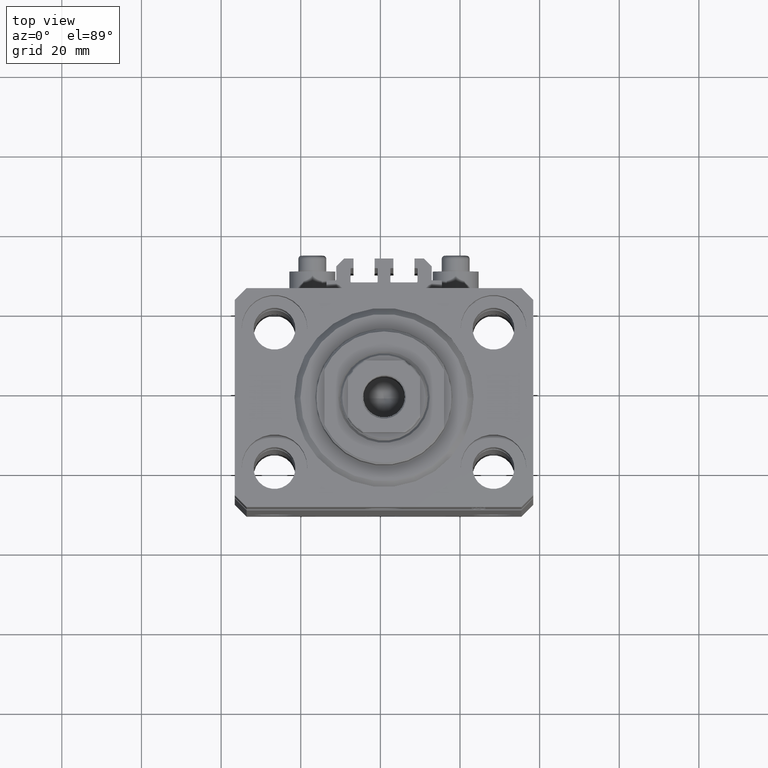
[diagram: clean part render]
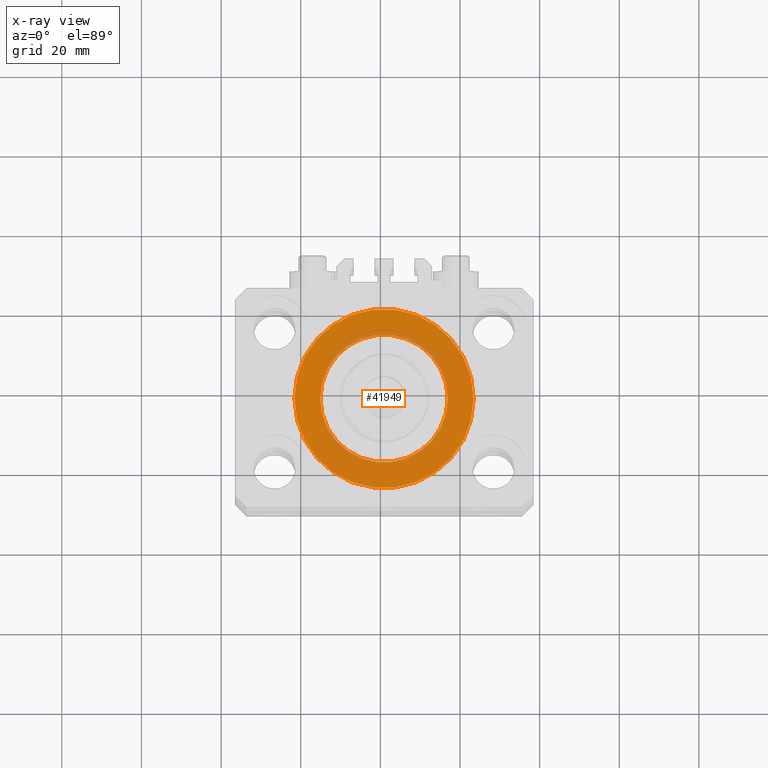
[diagram: x-ray — body ghosted, one internal face saturated and labeled with its STEP entity id]
A machine part, top view, then the same camera in x-ray: the body is ghosted and one INTERNAL B-rep face — a face not visible from any outside direction — is saturated and labeled: STEP entity #41949.
In plain terms, the highlighted planar face has unit normal (0, 0, 1).
Its self-contained STEP definition (entity closure, byte-faithful):
#2096 = CARTESIAN_POINT ( 'NONE',  ( 22.50000000000000355, 0.000000000000000000, -15.00000000000000000 ) ) ;
#3870 = CARTESIAN_POINT ( 'NONE',  ( 16.00000000000000000, 0.000000000000000000, -15.00000000000000000 ) ) ;
#3947 = CARTESIAN_POINT ( 'NONE',  ( -16.00000000000000000, 1.959434878635765131E-15, -15.00000000000000000 ) ) ;
#3951 = DIRECTION ( 'NONE',  ( 0.000000000000000000, 0.000000000000000000, 1.000000000000000000 ) ) ;
#4640 = EDGE_LOOP ( 'NONE', ( #11215, #38606 ) ) ;
#5938 = DIRECTION ( 'NONE',  ( 1.000000000000000000, 0.000000000000000000, 0.000000000000000000 ) ) ;
#6639 = CARTESIAN_POINT ( 'NONE',  ( 0.000000000000000000, 0.000000000000000000, -15.00000000000000000 ) ) ;
#9827 = CIRCLE ( 'NONE', #31525, 16.00000000000000000 ) ;
#9877 = AXIS2_PLACEMENT_3D ( 'NONE', #12116, #27143, #41424 ) ;
#10291 = CARTESIAN_POINT ( 'NONE',  ( 0.000000000000000000, 0.000000000000000000, -15.00000000000000000 ) ) ;
#11215 = ORIENTED_EDGE ( 'NONE', *, *, #31698, .F. ) ;
#12116 = CARTESIAN_POINT ( 'NONE',  ( 0.000000000000000000, 0.000000000000000000, -15.00000000000000000 ) ) ;
#12189 = CARTESIAN_POINT ( 'NONE',  ( 0.000000000000000000, 0.000000000000000000, -15.00000000000000000 ) ) ;
#12612 = ORIENTED_EDGE ( 'NONE', *, *, #19598, .T. ) ;
#12981 = CIRCLE ( 'NONE', #23063, 16.00000000000000000 ) ;
#14680 = CIRCLE ( 'NONE', #20869, 22.50000000000000355 ) ;
#15137 = EDGE_CURVE ( 'NONE', #34009, #20071, #41630, .T. ) ;
#15336 = EDGE_LOOP ( 'NONE', ( #34413, #12612 ) ) ;
#19598 = EDGE_CURVE ( 'NONE', #20071, #34009, #14680, .T. ) ;
#20071 = VERTEX_POINT ( 'NONE', #37291 ) ;
#20869 = AXIS2_PLACEMENT_3D ( 'NONE', #10291, #32104, #5938 ) ;
#21422 = DIRECTION ( 'NONE',  ( 1.000000000000000000, 0.000000000000000000, 0.000000000000000000 ) ) ;
#23063 = AXIS2_PLACEMENT_3D ( 'NONE', #6639, #25534, #21422 ) ;
#23812 = FACE_BOUND ( 'NONE', #4640, .T. ) ;
#24051 = FACE_OUTER_BOUND ( 'NONE', #15336, .T. ) ;
#25048 = VERTEX_POINT ( 'NONE', #3870 ) ;
#25534 = DIRECTION ( 'NONE',  ( 0.000000000000000000, 0.000000000000000000, 1.000000000000000000 ) ) ;
#26479 = DIRECTION ( 'NONE',  ( 1.000000000000000000, 0.000000000000000000, 0.000000000000000000 ) ) ;
#26724 = DIRECTION ( 'NONE',  ( 1.000000000000000000, 0.000000000000000000, -0.000000000000000000 ) ) ;
#27143 = DIRECTION ( 'NONE',  ( 0.000000000000000000, 0.000000000000000000, 1.000000000000000000 ) ) ;
#31525 = AXIS2_PLACEMENT_3D ( 'NONE', #41249, #3951, #26479 ) ;
#31698 = EDGE_CURVE ( 'NONE', #25048, #33610, #9827, .T. ) ;
#32104 = DIRECTION ( 'NONE',  ( 0.000000000000000000, 0.000000000000000000, 1.000000000000000000 ) ) ;
#32398 = EDGE_CURVE ( 'NONE', #33610, #25048, #12981, .T. ) ;
#33162 = AXIS2_PLACEMENT_3D ( 'NONE', #12189, #45616, #26724 ) ;
#33610 = VERTEX_POINT ( 'NONE', #3947 ) ;
#34009 = VERTEX_POINT ( 'NONE', #2096 ) ;
#34413 = ORIENTED_EDGE ( 'NONE', *, *, #15137, .T. ) ;
#37291 = CARTESIAN_POINT ( 'NONE',  ( -22.50000000000000355, 2.755455298081545172E-15, -15.00000000000000000 ) ) ;
#38606 = ORIENTED_EDGE ( 'NONE', *, *, #32398, .F. ) ;
#41249 = CARTESIAN_POINT ( 'NONE',  ( 0.000000000000000000, 0.000000000000000000, -15.00000000000000000 ) ) ;
#41424 = DIRECTION ( 'NONE',  ( 1.000000000000000000, 0.000000000000000000, 0.000000000000000000 ) ) ;
#41630 = CIRCLE ( 'NONE', #9877, 22.50000000000000355 ) ;
#41949 = ADVANCED_FACE ( 'NONE', ( #23812, #24051 ), #45371, .T. ) ;
#45371 = PLANE ( 'NONE',  #33162 ) ;
#45616 = DIRECTION ( 'NONE',  ( 0.000000000000000000, 0.000000000000000000, 1.000000000000000000 ) ) ;